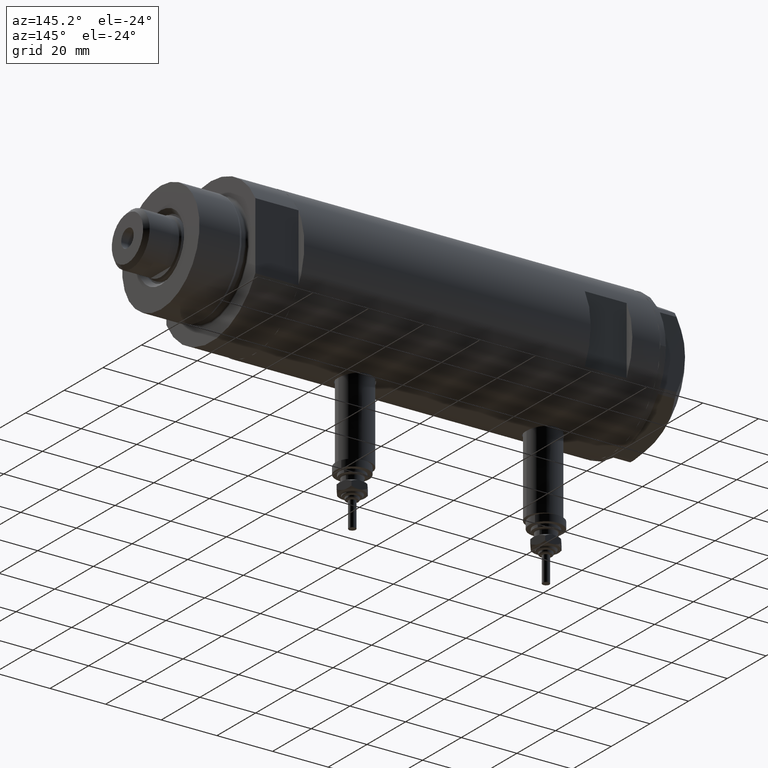
[diagram: clean part render]
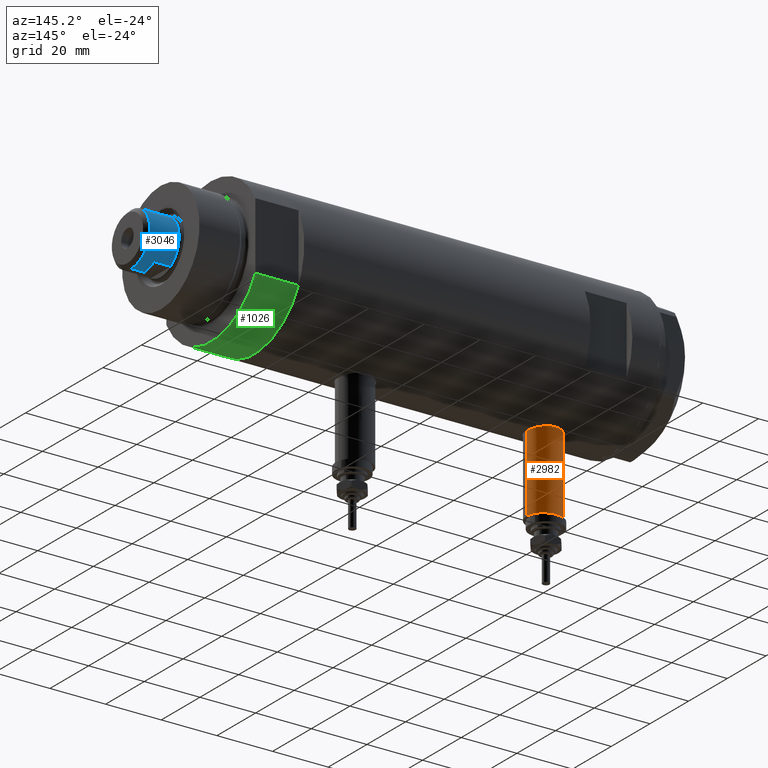
[diagram: same view with three faces highlighted in distinct colors, each labeled with its STEP entity id]
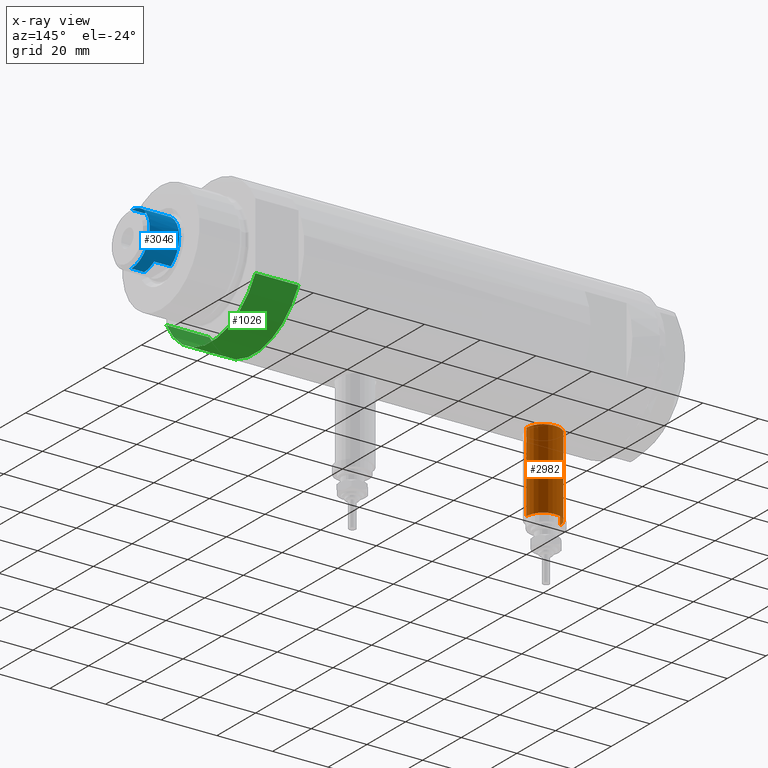
[diagram: x-ray of the same camera — body ghosted, the three highlighted faces saturated]
A machine part, auxiliary view with three faces highlighted in distinct colors.
The next image is the same camera in x-ray (body ghosted, the three faces saturated) — at least one of them is partly hidden behind the body in this view.
Their STEP definitions:

[orange] entity #2982 — the highlighted cylindrical surface (edge-blend (fillet) strip) has radius 6 mm, axis along (0, 0, 1).
#84 = EDGE_CURVE ( 'NONE', #3521, #6269, #3640, .T. ) ;
#364 = EDGE_CURVE ( 'NONE', #4084, #3521, #4475, .T. ) ;
#405 = VECTOR ( 'NONE', #3873, 1000.000000000000000 ) ;
#817 = AXIS2_PLACEMENT_3D ( 'NONE', #6152, #3593, #3653 ) ;
#864 = ORIENTED_EDGE ( 'NONE', *, *, #364, .F. ) ;
#996 = DIRECTION ( 'NONE',  ( 0.000000000000000000, 0.000000000000000000, -1.000000000000000000 ) ) ;
#1002 = DIRECTION ( 'NONE',  ( -1.000000000000000000, 0.000000000000000000, 0.000000000000000000 ) ) ;
#1397 = LINE ( 'NONE', #3816, #405 ) ;
#1499 = DIRECTION ( 'NONE',  ( 1.000000000000000000, -0.000000000000000000, -0.000000000000000000 ) ) ;
#1829 = CIRCLE ( 'NONE', #817, 5.999999999999998224 ) ;
#1915 = AXIS2_PLACEMENT_3D ( 'NONE', #5377, #1002, #6319 ) ;
#2169 = CYLINDRICAL_SURFACE ( 'NONE', #3215, 5.999999999999998224 ) ;
#2220 = VECTOR ( 'NONE', #6131, 1000.000000000000000 ) ;
#2246 = VERTEX_POINT ( 'NONE', #4677 ) ;
#2929 = CARTESIAN_POINT ( 'NONE',  ( -53.40000000000000568, 0.000000000000000000, 33.95000000000000995 ) ) ;
#2982 = ADVANCED_FACE ( 'NONE', ( #4601 ), #2169, .T. ) ;
#3110 = EDGE_CURVE ( 'NONE', #2246, #6269, #1829, .T. ) ;
#3121 = CARTESIAN_POINT ( 'NONE',  ( -53.40000000000000568, 7.347880794884108889E-16, 45.95000000000000284 ) ) ;
#3170 = EDGE_LOOP ( 'NONE', ( #864, #3606, #5537, #3764 ) ) ;
#3215 = AXIS2_PLACEMENT_3D ( 'NONE', #4127, #1499, #996 ) ;
#3363 = EDGE_CURVE ( 'NONE', #4084, #2246, #1397, .T. ) ;
#3521 = VERTEX_POINT ( 'NONE', #2929 ) ;
#3593 = DIRECTION ( 'NONE',  ( -1.000000000000000000, 0.000000000000000000, 0.000000000000000000 ) ) ;
#3606 = ORIENTED_EDGE ( 'NONE', *, *, #3363, .T. ) ;
#3640 = LINE ( 'NONE', #3989, #2220 ) ;
#3653 = DIRECTION ( 'NONE',  ( 0.000000000000000000, 0.000000000000000000, 1.000000000000000000 ) ) ;
#3764 = ORIENTED_EDGE ( 'NONE', *, *, #84, .F. ) ;
#3816 = CARTESIAN_POINT ( 'NONE',  ( -53.40000000000000568, 7.347880794884112834E-16, 45.95000000000000284 ) ) ;
#3873 = DIRECTION ( 'NONE',  ( 1.000000000000000000, -0.000000000000000000, -0.000000000000000000 ) ) ;
#3989 = CARTESIAN_POINT ( 'NONE',  ( -53.40000000000000568, 0.000000000000000000, 33.95000000000000995 ) ) ;
#4084 = VERTEX_POINT ( 'NONE', #3121 ) ;
#4093 = CARTESIAN_POINT ( 'NONE',  ( -24.80000000000000426, 0.000000000000000000, 33.95000000000000995 ) ) ;
#4127 = CARTESIAN_POINT ( 'NONE',  ( -53.40000000000000568, 0.000000000000000000, 39.95000000000000284 ) ) ;
#4475 = CIRCLE ( 'NONE', #1915, 5.999999999999998224 ) ;
#4601 = FACE_OUTER_BOUND ( 'NONE', #3170, .T. ) ;
#4677 = CARTESIAN_POINT ( 'NONE',  ( -24.80000000000000426, 7.347880794884108889E-16, 45.95000000000000284 ) ) ;
#5377 = CARTESIAN_POINT ( 'NONE',  ( -53.40000000000000568, 0.000000000000000000, 39.95000000000000284 ) ) ;
#5537 = ORIENTED_EDGE ( 'NONE', *, *, #3110, .T. ) ;
#6131 = DIRECTION ( 'NONE',  ( 1.000000000000000000, -0.000000000000000000, -0.000000000000000000 ) ) ;
#6152 = CARTESIAN_POINT ( 'NONE',  ( -24.80000000000000426, 0.000000000000000000, 39.95000000000000284 ) ) ;
#6269 = VERTEX_POINT ( 'NONE', #4093 ) ;
#6319 = DIRECTION ( 'NONE',  ( 0.000000000000000000, 0.000000000000000000, 1.000000000000000000 ) ) ;

[blue] entity #3046 — the highlighted cylindrical surface (edge-blend (fillet) strip) has radius 9.5 mm, axis along (-1, -0, 0).
#60 = ORIENTED_EDGE ( 'NONE', *, *, #5985, .T. ) ;
#70 = DIRECTION ( 'NONE',  ( -0.000000000000000000, -0.000000000000000000, -1.000000000000000000 ) ) ;
#100 = ORIENTED_EDGE ( 'NONE', *, *, #5476, .T. ) ;
#104 = AXIS2_PLACEMENT_3D ( 'NONE', #507, #5342, #4418 ) ;
#114 = VERTEX_POINT ( 'NONE', #3250 ) ;
#142 = DIRECTION ( 'NONE',  ( -0.000000000000000000, -0.000000000000000000, -1.000000000000000000 ) ) ;
#507 = CARTESIAN_POINT ( 'NONE',  ( 0.000000000000000000, 0.000000000000000000, 143.5999999999999943 ) ) ;
#522 = VECTOR ( 'NONE', #5874, 1000.000000000000000 ) ;
#687 = ORIENTED_EDGE ( 'NONE', *, *, #5091, .T. ) ;
#782 = ORIENTED_EDGE ( 'NONE', *, *, #3561, .T. ) ;
#847 = VERTEX_POINT ( 'NONE', #3439 ) ;
#966 = EDGE_CURVE ( 'NONE', #5399, #114, #1587, .T. ) ;
#1066 = FACE_OUTER_BOUND ( 'NONE', #5964, .T. ) ;
#1419 = CARTESIAN_POINT ( 'NONE',  ( -7.982950582334830791, 5.149999999999999467, 143.5999999999999943 ) ) ;
#1420 = VERTEX_POINT ( 'NONE', #2916 ) ;
#1520 = CARTESIAN_POINT ( 'NONE',  ( -7.982950582334830791, 5.149999999999999467, 143.5999999999999943 ) ) ;
#1587 = LINE ( 'NONE', #1520, #4174 ) ;
#1628 = CARTESIAN_POINT ( 'NONE',  ( 7.982950582334830791, 5.149999999999999467, 143.5999999999999943 ) ) ;
#1735 = AXIS2_PLACEMENT_3D ( 'NONE', #3542, #3090, #2097 ) ;
#1755 = CIRCLE ( 'NONE', #4210, 9.500000000000000000 ) ;
#1905 = LINE ( 'NONE', #2508, #522 ) ;
#2097 = DIRECTION ( 'NONE',  ( 1.000000000000000000, 0.000000000000000000, 0.000000000000000000 ) ) ;
#2149 = CARTESIAN_POINT ( 'NONE',  ( 0.000000000000000000, 0.000000000000000000, 148.1999999999999886 ) ) ;
#2211 = VERTEX_POINT ( 'NONE', #2241 ) ;
#2235 = EDGE_CURVE ( 'NONE', #1420, #5695, #2786, .T. ) ;
#2241 = CARTESIAN_POINT ( 'NONE',  ( 7.982950582334830791, 5.149999999999999467, 143.5999999999999943 ) ) ;
#2251 = CARTESIAN_POINT ( 'NONE',  ( -9.500000000000000000, 0.000000000000000000, 143.5999999999999943 ) ) ;
#2273 = CARTESIAN_POINT ( 'NONE',  ( 9.500000000000000000, 1.163414459189985485E-15, 143.5999999999999943 ) ) ;
#2324 = VECTOR ( 'NONE', #142, 1000.000000000000000 ) ;
#2428 = EDGE_CURVE ( 'NONE', #2211, #847, #4523, .T. ) ;
#2442 = AXIS2_PLACEMENT_3D ( 'NONE', #2149, #5510, #4112 ) ;
#2489 = CARTESIAN_POINT ( 'NONE',  ( 0.000000000000000000, 0.000000000000000000, 143.5999999999999943 ) ) ;
#2508 = CARTESIAN_POINT ( 'NONE',  ( 9.500000000000001776, 1.163414459189985682E-15, 143.5999999999999943 ) ) ;
#2603 = CARTESIAN_POINT ( 'NONE',  ( 0.000000000000000000, 0.000000000000000000, 143.5999999999999943 ) ) ;
#2786 = LINE ( 'NONE', #2813, #4480 ) ;
#2813 = CARTESIAN_POINT ( 'NONE',  ( -9.500000000000001776, 0.000000000000000000, 143.5999999999999943 ) ) ;
#2916 = CARTESIAN_POINT ( 'NONE',  ( -9.500000000000001776, 0.000000000000000000, 148.1999999999999886 ) ) ;
#3046 = ADVANCED_FACE ( 'NONE', ( #1066 ), #3912, .T. ) ;
#3090 = DIRECTION ( 'NONE',  ( 0.000000000000000000, 0.000000000000000000, 1.000000000000000000 ) ) ;
#3250 = CARTESIAN_POINT ( 'NONE',  ( -7.982950582334829015, 5.150000000000015454, 137.5999999999999943 ) ) ;
#3308 = DIRECTION ( 'NONE',  ( -0.000000000000000000, -0.000000000000000000, -1.000000000000000000 ) ) ;
#3347 = VERTEX_POINT ( 'NONE', #2273 ) ;
#3439 = CARTESIAN_POINT ( 'NONE',  ( 7.982950582334830791, 5.149999999999999467, 137.5999999999999943 ) ) ;
#3527 = DIRECTION ( 'NONE',  ( -1.000000000000000000, 0.000000000000000000, 0.000000000000000000 ) ) ;
#3542 = CARTESIAN_POINT ( 'NONE',  ( 0.000000000000000000, 0.000000000000000000, 137.5999999999999943 ) ) ;
#3561 = EDGE_CURVE ( 'NONE', #3347, #2211, #3882, .T. ) ;
#3839 = VERTEX_POINT ( 'NONE', #4317 ) ;
#3882 = CIRCLE ( 'NONE', #104, 9.500000000000000000 ) ;
#3912 = CYLINDRICAL_SURFACE ( 'NONE', #4191, 9.500000000000001776 ) ;
#3927 = DIRECTION ( 'NONE',  ( -0.000000000000000000, -0.000000000000000000, -1.000000000000000000 ) ) ;
#4067 = EDGE_CURVE ( 'NONE', #847, #114, #4497, .T. ) ;
#4112 = DIRECTION ( 'NONE',  ( 1.000000000000000000, 0.000000000000000000, 0.000000000000000000 ) ) ;
#4170 = ORIENTED_EDGE ( 'NONE', *, *, #2235, .F. ) ;
#4174 = VECTOR ( 'NONE', #3927, 1000.000000000000000 ) ;
#4191 = AXIS2_PLACEMENT_3D ( 'NONE', #2489, #70, #3527 ) ;
#4210 = AXIS2_PLACEMENT_3D ( 'NONE', #2603, #5008, #4499 ) ;
#4317 = CARTESIAN_POINT ( 'NONE',  ( 9.500000000000001776, 1.163414459189985682E-15, 148.1999999999999886 ) ) ;
#4418 = DIRECTION ( 'NONE',  ( 1.000000000000000000, 0.000000000000000000, 0.000000000000000000 ) ) ;
#4480 = VECTOR ( 'NONE', #3308, 1000.000000000000000 ) ;
#4497 = CIRCLE ( 'NONE', #1735, 9.500000000000008882 ) ;
#4499 = DIRECTION ( 'NONE',  ( 1.000000000000000000, 0.000000000000000000, 0.000000000000000000 ) ) ;
#4523 = LINE ( 'NONE', #1628, #2324 ) ;
#4782 = ORIENTED_EDGE ( 'NONE', *, *, #2428, .T. ) ;
#4806 = CIRCLE ( 'NONE', #2442, 9.500000000000001776 ) ;
#4960 = ORIENTED_EDGE ( 'NONE', *, *, #966, .F. ) ;
#5008 = DIRECTION ( 'NONE',  ( 0.000000000000000000, 0.000000000000000000, 1.000000000000000000 ) ) ;
#5091 = EDGE_CURVE ( 'NONE', #3839, #3347, #1905, .T. ) ;
#5342 = DIRECTION ( 'NONE',  ( 0.000000000000000000, 0.000000000000000000, 1.000000000000000000 ) ) ;
#5399 = VERTEX_POINT ( 'NONE', #1419 ) ;
#5476 = EDGE_CURVE ( 'NONE', #5399, #5695, #1755, .T. ) ;
#5510 = DIRECTION ( 'NONE',  ( 0.000000000000000000, 0.000000000000000000, -1.000000000000000000 ) ) ;
#5695 = VERTEX_POINT ( 'NONE', #2251 ) ;
#5874 = DIRECTION ( 'NONE',  ( -0.000000000000000000, -0.000000000000000000, -1.000000000000000000 ) ) ;
#5964 = EDGE_LOOP ( 'NONE', ( #60, #687, #782, #4782, #6123, #4960, #100, #4170 ) ) ;
#5985 = EDGE_CURVE ( 'NONE', #1420, #3839, #4806, .T. ) ;
#6123 = ORIENTED_EDGE ( 'NONE', *, *, #4067, .T. ) ;

[green] entity #1026 — the highlighted cylindrical surface (partial cylindrical patch) has radius 26 mm, axis along (-1, -0, 0).
#165 = DIRECTION ( 'NONE',  ( 1.000000000000000000, 0.000000000000000000, 0.000000000000000000 ) ) ;
#232 = DIRECTION ( 'NONE',  ( 0.000000000000000000, 0.000000000000000000, 1.000000000000000000 ) ) ;
#255 = ORIENTED_EDGE ( 'NONE', *, *, #5029, .T. ) ;
#475 = CARTESIAN_POINT ( 'NONE',  ( 12.12435565298215323, 23.00000000000000355, 0.000000000000000000 ) ) ;
#922 = CIRCLE ( 'NONE', #2944, 26.00000000000000355 ) ;
#965 = LINE ( 'NONE', #989, #972 ) ;
#972 = VECTOR ( 'NONE', #3815, 1000.000000000000000 ) ;
#989 = CARTESIAN_POINT ( 'NONE',  ( 12.12435565298215323, -22.99999999999999645, 0.000000000000000000 ) ) ;
#1026 = ADVANCED_FACE ( 'NONE', ( #2478 ), #2957, .T. ) ;
#1053 = LINE ( 'NONE', #475, #1140 ) ;
#1140 = VECTOR ( 'NONE', #2413, 1000.000000000000000 ) ;
#1237 = AXIS2_PLACEMENT_3D ( 'NONE', #3681, #232, #165 ) ;
#1392 = EDGE_LOOP ( 'NONE', ( #5228, #4624, #4336, #255 ) ) ;
#1473 = CARTESIAN_POINT ( 'NONE',  ( 0.000000000000000000, 0.000000000000000000, 0.000000000000000000 ) ) ;
#1721 = VERTEX_POINT ( 'NONE', #3244 ) ;
#1851 = CARTESIAN_POINT ( 'NONE',  ( 12.12435565298214790, 23.00000000000000355, 15.50000000000000000 ) ) ;
#1946 = VERTEX_POINT ( 'NONE', #1851 ) ;
#2413 = DIRECTION ( 'NONE',  ( -0.000000000000000000, -0.000000000000000000, 1.000000000000000000 ) ) ;
#2478 = FACE_OUTER_BOUND ( 'NONE', #1392, .T. ) ;
#2563 = CIRCLE ( 'NONE', #1237, 26.00000000000000355 ) ;
#2638 = AXIS2_PLACEMENT_3D ( 'NONE', #3023, #3416, #2990 ) ;
#2732 = EDGE_CURVE ( 'NONE', #3650, #5662, #965, .T. ) ;
#2944 = AXIS2_PLACEMENT_3D ( 'NONE', #1473, #4043, #5986 ) ;
#2957 = CYLINDRICAL_SURFACE ( 'NONE', #2638, 26.00000000000000355 ) ;
#2990 = DIRECTION ( 'NONE',  ( -1.000000000000000000, 0.000000000000000000, 0.000000000000000000 ) ) ;
#3023 = CARTESIAN_POINT ( 'NONE',  ( 0.000000000000000000, 0.000000000000000000, 15.50000000000000000 ) ) ;
#3072 = EDGE_CURVE ( 'NONE', #3650, #1721, #922, .T. ) ;
#3244 = CARTESIAN_POINT ( 'NONE',  ( 12.12435565298214080, 23.00000000000000355, 0.000000000000000000 ) ) ;
#3416 = DIRECTION ( 'NONE',  ( -0.000000000000000000, -0.000000000000000000, -1.000000000000000000 ) ) ;
#3620 = CARTESIAN_POINT ( 'NONE',  ( 12.12435565298215323, -22.99999999999999645, 0.000000000000000000 ) ) ;
#3650 = VERTEX_POINT ( 'NONE', #3620 ) ;
#3681 = CARTESIAN_POINT ( 'NONE',  ( 0.000000000000000000, 0.000000000000000000, 15.50000000000000000 ) ) ;
#3815 = DIRECTION ( 'NONE',  ( -0.000000000000000000, -0.000000000000000000, 1.000000000000000000 ) ) ;
#4043 = DIRECTION ( 'NONE',  ( 0.000000000000000000, 0.000000000000000000, 1.000000000000000000 ) ) ;
#4336 = ORIENTED_EDGE ( 'NONE', *, *, #3072, .T. ) ;
#4624 = ORIENTED_EDGE ( 'NONE', *, *, #2732, .F. ) ;
#4792 = EDGE_CURVE ( 'NONE', #5662, #1946, #2563, .T. ) ;
#5029 = EDGE_CURVE ( 'NONE', #1721, #1946, #1053, .T. ) ;
#5228 = ORIENTED_EDGE ( 'NONE', *, *, #4792, .F. ) ;
#5612 = CARTESIAN_POINT ( 'NONE',  ( 12.12435565298215323, -22.99999999999999645, 15.50000000000000000 ) ) ;
#5662 = VERTEX_POINT ( 'NONE', #5612 ) ;
#5986 = DIRECTION ( 'NONE',  ( 1.000000000000000000, 0.000000000000000000, 0.000000000000000000 ) ) ;